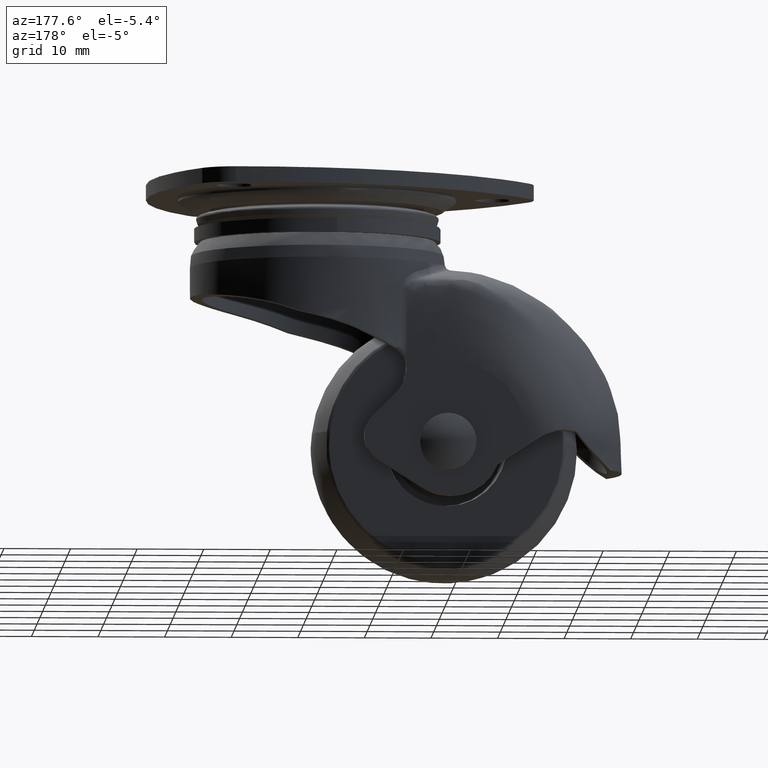
[diagram: clean part render]
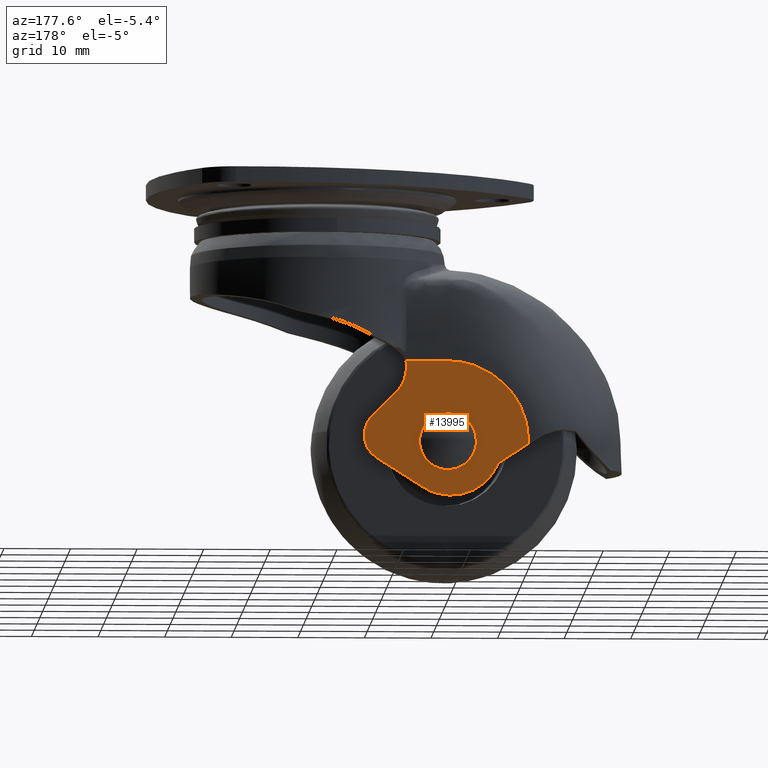
[diagram: same view with one face highlighted and labeled with its STEP entity id]
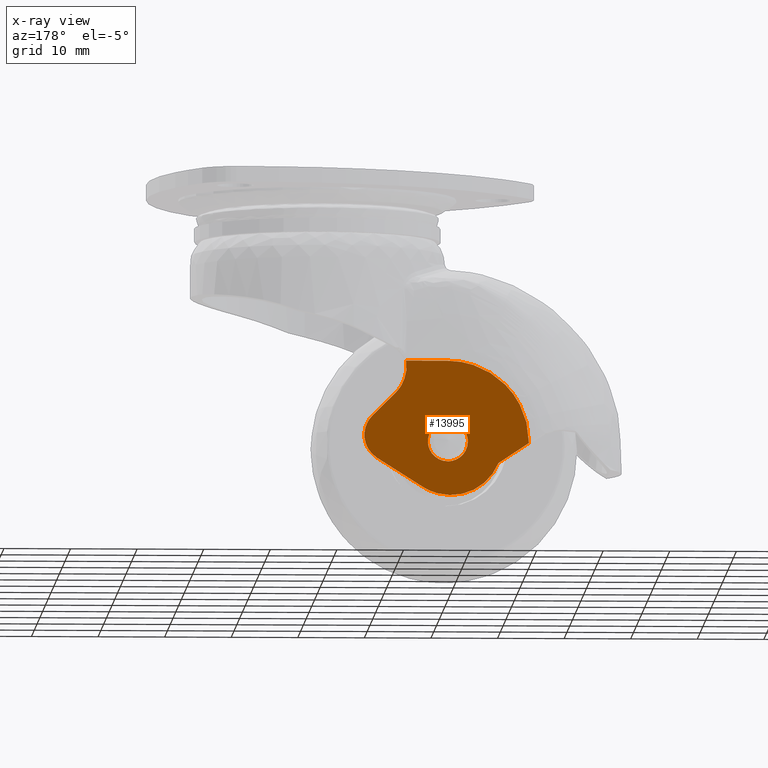
[diagram: x-ray of the same camera — body ghosted, the highlighted face saturated]
A machine part, auxiliary view. The second image highlights one B-rep face of the part: STEP entity #13995.
The next image is the same camera in x-ray: the body ghosted, the highlighted face saturated — about 0% of this face is hidden behind the body in this view.
In plain terms, the highlighted face is a freeform B-spline surface patch.
Its self-contained STEP definition (entity closure, byte-faithful):
#8306=CARTESIAN_POINT('',(-21.999885769190101,14.550000000000001,-40.026179606771542));
#8307=VERTEX_POINT('',#8306);
#8313=CARTESIAN_POINT('',(-19.0,14.550000000000001,-37.0));
#8314=VERTEX_POINT('',#8313);
#8315=CARTESIAN_POINT('',(-19.0,14.550000000000001,-37.0));
#8316=CARTESIAN_POINT('',(-22.000000000000007,14.550000000000002,-37.0));
#8317=CARTESIAN_POINT('',(-22.0,14.550000000000001,-40.0));
#8318=CARTESIAN_POINT('',(-22.000000000000007,14.550000000000008,-40.013090052738534));
#8319=CARTESIAN_POINT('',(-21.999885769190101,14.549999999999995,-40.026179606771535));
#8327=(BOUNDED_CURVE()B_SPLINE_CURVE(2,(#8315,#8316,#8317,#8318,#8319),.UNSPECIFIED.,.F.,.U.)B_SPLINE_CURVE_WITH_KNOTS((3,2,3),(0.500000000000000,0.750000000000000,0.751539894367447),.UNSPECIFIED.)CURVE()GEOMETRIC_REPRESENTATION_ITEM()RATIONAL_B_SPLINE_CURVE((1.0,0.707106781186548,1.0,0.998195901528342,0.996414028025284))REPRESENTATION_ITEM(''));
#8328=EDGE_CURVE('',#8314,#8307,#8327,.T.);
#8330=CARTESIAN_POINT('',(-16.023201358545140,14.550000000000001,-39.627615993586623));
#8331=VERTEX_POINT('',#8330);
#8332=CARTESIAN_POINT('',(-16.023201358545137,14.550000000000002,-39.627615993586609));
#8333=CARTESIAN_POINT('',(-16.351904199861121,14.550000000000001,-37.000000000000007));
#8334=CARTESIAN_POINT('',(-19.0,14.550000000000001,-37.0));
#8342=(BOUNDED_CURVE()B_SPLINE_CURVE(2,(#8332,#8333,#8334),.UNSPECIFIED.,.F.,.U.)B_SPLINE_CURVE_WITH_KNOTS((3,3),(0.271473928990405,0.500000000000000),.UNSPECIFIED.)CURVE()GEOMETRIC_REPRESENTATION_ITEM()RATIONAL_B_SPLINE_CURVE((0.954005430236482,0.732265053916832,1.0))REPRESENTATION_ITEM(''));
#8343=EDGE_CURVE('',#8331,#8314,#8342,.T.);
#8393=CARTESIAN_POINT('',(-19.0,14.550000000000001,-43.0));
#8394=VERTEX_POINT('',#8393);
#8395=CARTESIAN_POINT('',(-19.0,14.550000000000001,-43.0));
#8396=CARTESIAN_POINT('',(-15.999999999999998,14.550000000000002,-42.999999999999993));
#8397=CARTESIAN_POINT('',(-16.0,14.550000000000001,-40.0));
#8398=CARTESIAN_POINT('',(-16.000000000000007,14.550000000000002,-39.813085217223573));
#8399=CARTESIAN_POINT('',(-16.023201358545137,14.550000000000002,-39.627615993586609));
#8407=(BOUNDED_CURVE()B_SPLINE_CURVE(2,(#8395,#8396,#8397,#8398,#8399),.UNSPECIFIED.,.F.,.U.)B_SPLINE_CURVE_WITH_KNOTS((3,2,3),(0.0,0.250000000000000,0.271473928990405),.UNSPECIFIED.)CURVE()GEOMETRIC_REPRESENTATION_ITEM()RATIONAL_B_SPLINE_CURVE((1.0,0.707106781186548,1.0,0.974841727269715,0.954005430236482))REPRESENTATION_ITEM(''));
#8408=EDGE_CURVE('',#8394,#8331,#8407,.T.);
#8410=CARTESIAN_POINT('',(-21.999885769190104,14.550000000000001,-40.026179606771535));
#8411=CARTESIAN_POINT('',(-21.973933631236864,14.549999999999995,-42.999999999999993));
#8412=CARTESIAN_POINT('',(-19.0,14.550000000000001,-43.0));
#8420=(BOUNDED_CURVE()B_SPLINE_CURVE(2,(#8410,#8411,#8412),.UNSPECIFIED.,.F.,.U.)B_SPLINE_CURVE_WITH_KNOTS((3,3),(0.751539894367447,1.0),.UNSPECIFIED.)CURVE()GEOMETRIC_REPRESENTATION_ITEM()RATIONAL_B_SPLINE_CURVE((0.996414028025284,0.708910879658205,1.0))REPRESENTATION_ITEM(''));
#8421=EDGE_CURVE('',#8307,#8394,#8420,.T.);
#13450=CARTESIAN_POINT('',(-15.263557869565551,14.550000000000001,-46.886288979788603));
#13451=VERTEX_POINT('',#13450);
#13457=CARTESIAN_POINT('',(-8.358260999999800,14.550000000000001,-42.513686999999898));
#13458=VERTEX_POINT('',#13457);
#13459=CARTESIAN_POINT('',(-15.263557869565551,14.550000000000001,-46.886288979788603));
#13460=CARTESIAN_POINT('',(-8.358260999999800,14.550000000000001,-42.513686999999898));
#13461=QUASI_UNIFORM_CURVE('',1,(#13459,#13460),.UNSPECIFIED.,.F.,.U.);
#13462=EDGE_CURVE('',#13451,#13458,#13461,.T.);
#13487=CARTESIAN_POINT('',(-26.596337769349351,14.550000000000001,-43.233218426976201));
#13488=VERTEX_POINT('',#13487);
#13494=CARTESIAN_POINT('',(-26.596337769349351,14.550000000000001,-43.233218426976201));
#13495=CARTESIAN_POINT('',(-25.240896333229767,14.550000000000001,-46.600903582686662));
#13496=CARTESIAN_POINT('',(-21.785743756631419,14.550000000000001,-47.714656457954973));
#13497=CARTESIAN_POINT('',(-18.330591180033075,14.550000000000001,-48.828409333223284));
#13498=CARTESIAN_POINT('',(-15.263557869565540,14.550000000000001,-46.886288979788617));
#13506=(BOUNDED_CURVE()B_SPLINE_CURVE(2,(#13494,#13495,#13496,#13497,#13498),.UNSPECIFIED.,.F.,.U.)B_SPLINE_CURVE_WITH_KNOTS((3,2,3),(0.0,0.500000000000000,1.0),.UNSPECIFIED.)CURVE()GEOMETRIC_REPRESENTATION_ITEM()RATIONAL_B_SPLINE_CURVE((1.0,0.905533696519778,1.0,0.905533696519778,1.0))REPRESENTATION_ITEM(''));
#13507=EDGE_CURVE('',#13488,#13451,#13506,.T.);
#13871=CARTESIAN_POINT('',(-32.393377568723679,14.550000000000001,-26.828626052461960));
#13872=CARTESIAN_POINT('',(-32.393377568723679,14.550000000000001,-49.098137059517320));
#13873=CARTESIAN_POINT('',(-5.224336063072109,14.550000000000001,-26.828626052461960));
#13874=CARTESIAN_POINT('',(-5.224336063072109,14.550000000000001,-49.098137059517320));
#13875=B_SPLINE_SURFACE_WITH_KNOTS('',1,1,((#13871,#13873),(#13872,#13874)),.UNSPECIFIED.,.F.,.F.,.U.,(2,2),(2,2),(0.0,22.269511007055360),(0.0,27.169041505651570),.UNSPECIFIED.);
#13876=ORIENTED_EDGE('',*,*,#13507,.F.);
#13877=CARTESIAN_POINT('',(-31.157816983188400,14.550000000000001,-40.204930454616601));
#13878=VERTEX_POINT('',#13877);
#13879=CARTESIAN_POINT('',(-26.596337769349400,14.550000000000001,-43.233218426976293));
#13880=CARTESIAN_POINT('',(-28.840033417295018,14.549999999999997,-41.663275504103687));
#13881=CARTESIAN_POINT('',(-31.157816983188461,14.550000000000001,-40.204930454616687));
#13889=(BOUNDED_CURVE()B_SPLINE_CURVE(2,(#13879,#13880,#13881),.UNSPECIFIED.,.F.,.U.)CURVE()GEOMETRIC_REPRESENTATION_ITEM()QUASI_UNIFORM_CURVE()RATIONAL_B_SPLINE_CURVE((1.0,0.999700859279930,1.0))REPRESENTATION_ITEM(''));
#13890=EDGE_CURVE('',#13488,#13878,#13889,.T.);
#13891=ORIENTED_EDGE('',*,*,#13890,.T.);
#13892=CARTESIAN_POINT('',(-31.159543999999752,14.550000000000001,-39.999998204172947));
#13893=VERTEX_POINT('',#13892);
#13894=CARTESIAN_POINT('',(-31.159543999999752,14.550000000000001,-39.999998204172947));
#13895=CARTESIAN_POINT('',(-31.159544015134127,14.550000000000004,-40.102471606529818));
#13896=CARTESIAN_POINT('',(-31.157816983188400,14.550000000000001,-40.204930454616601));
#13904=(BOUNDED_CURVE()B_SPLINE_CURVE(2,(#13894,#13895,#13896),.UNSPECIFIED.,.F.,.U.)CURVE()GEOMETRIC_REPRESENTATION_ITEM()QUASI_UNIFORM_CURVE()RATIONAL_B_SPLINE_CURVE((1.0,0.999964491313558,1.0))REPRESENTATION_ITEM(''));
#13905=EDGE_CURVE('',#13893,#13878,#13904,.T.);
#13906=ORIENTED_EDGE('',*,*,#13905,.F.);
#13907=CARTESIAN_POINT('',(-27.599907046369701,14.550000000000001,-31.403715796445500));
#13908=VERTEX_POINT('',#13907);
#13909=CARTESIAN_POINT('',(-31.159543999999752,14.550000000000001,-39.999998204172947));
#13910=CARTESIAN_POINT('',(-31.158894182039649,14.550000000000001,-36.643496337140519));
#13911=CARTESIAN_POINT('',(-29.798744029562471,14.550000000000001,-33.604464345992461));
#13912=CARTESIAN_POINT('',(-27.599907046369701,14.550000000000001,-31.403715796445500));
#13913=B_SPLINE_CURVE_WITH_KNOTS('',3,(#13909,#13910,#13911,#13912),.UNSPECIFIED.,.F.,.U.,(4,4),(1.000000089137952,1.499715138979181),.UNSPECIFIED.);
#13914=EDGE_CURVE('',#13893,#13908,#13913,.T.);
#13915=ORIENTED_EDGE('',*,*,#13914,.T.);
#13916=CARTESIAN_POINT('',(-19.0,14.550000000000001,-27.839956000080349));
#13917=VERTEX_POINT('',#13916);
#13918=CARTESIAN_POINT('',(-27.599907046369701,14.550000000000001,-31.403715796445500));
#13919=CARTESIAN_POINT('',(-25.398902913027420,14.550000000000001,-29.202556957239018));
#13920=CARTESIAN_POINT('',(-22.358369033956450,14.550000000000001,-27.840726605074991));
#13921=CARTESIAN_POINT('',(-19.0,14.550000000000001,-27.839956000080349));
#13922=B_SPLINE_CURVE_WITH_KNOTS('',3,(#13918,#13919,#13920,#13921),.UNSPECIFIED.,.F.,.U.,(4,4),(1.500000000000040,1.999999980078570),.UNSPECIFIED.);
#13923=EDGE_CURVE('',#13908,#13917,#13922,.T.);
#13924=ORIENTED_EDGE('',*,*,#13923,.T.);
#13925=CARTESIAN_POINT('',(-12.696323645292560,14.550000000000001,-27.840455999999548));
#13926=VERTEX_POINT('',#13925);
#13927=CARTESIAN_POINT('',(-19.0,14.550000000000001,-27.839956000080349));
#13928=CARTESIAN_POINT('',(-16.898774548430730,14.550000000000001,-27.840122666720148));
#13929=CARTESIAN_POINT('',(-14.797549096861619,14.550000000000001,-27.840289333359870));
#13930=CARTESIAN_POINT('',(-12.696323645292560,14.550000000000001,-27.840455999999548));
#13931=B_SPLINE_CURVE_WITH_KNOTS('',3,(#13927,#13928,#13929,#13930),.UNSPECIFIED.,.F.,.U.,(4,4),(2.0,2.331772439721395),.UNSPECIFIED.);
#13932=EDGE_CURVE('',#13917,#13926,#13931,.T.);
#13933=ORIENTED_EDGE('',*,*,#13932,.T.);
#13934=CARTESIAN_POINT('',(-12.730730015653720,14.550000000000001,-28.024757255452300));
#13935=VERTEX_POINT('',#13934);
#13936=CARTESIAN_POINT('',(-12.696323645292569,14.550000000000001,-27.840455999999548));
#13937=CARTESIAN_POINT('',(-12.718501727635553,14.550000000000006,-27.931677886604756));
#13938=CARTESIAN_POINT('',(-12.730730015653720,14.550000000000001,-28.024757255452300));
#13946=(BOUNDED_CURVE()B_SPLINE_CURVE(2,(#13936,#13937,#13938),.UNSPECIFIED.,.F.,.U.)CURVE()GEOMETRIC_REPRESENTATION_ITEM()QUASI_UNIFORM_CURVE()RATIONAL_B_SPLINE_CURVE((1.0,0.998546140216642,1.0))REPRESENTATION_ITEM(''));
#13947=EDGE_CURVE('',#13926,#13935,#13946,.T.);
#13948=ORIENTED_EDGE('',*,*,#13947,.T.);
#13949=CARTESIAN_POINT('',(-11.145439816362840,14.550000000000001,-32.686664715865803));
#13950=VERTEX_POINT('',#13949);
#13951=CARTESIAN_POINT('',(-12.730730015653730,14.550000000000001,-28.024757255452300));
#13952=CARTESIAN_POINT('',(-13.088370783778275,14.550000000000004,-30.746867808921436));
#13953=CARTESIAN_POINT('',(-11.145439816362840,14.550000000000001,-32.686664715865803));
#13961=(BOUNDED_CURVE()B_SPLINE_CURVE(2,(#13951,#13952,#13953),.UNSPECIFIED.,.F.,.U.)CURVE()GEOMETRIC_REPRESENTATION_ITEM()QUASI_UNIFORM_CURVE()RATIONAL_B_SPLINE_CURVE((1.0,0.896752652619497,1.0))REPRESENTATION_ITEM(''));
#13962=EDGE_CURVE('',#13935,#13950,#13961,.T.);
#13963=ORIENTED_EDGE('',*,*,#13962,.T.);
#13964=CARTESIAN_POINT('',(-7.657226152445430,14.550000000000001,-36.169252321304100));
#13965=VERTEX_POINT('',#13964);
#13966=CARTESIAN_POINT('',(-11.145439816362840,14.550000000000001,-32.686664715865803));
#13967=CARTESIAN_POINT('',(-7.657226152445430,14.550000000000001,-36.169252321304100));
#13968=QUASI_UNIFORM_CURVE('',1,(#13966,#13967),.UNSPECIFIED.,.F.,.U.);
#13969=EDGE_CURVE('',#13950,#13965,#13968,.T.);
#13970=ORIENTED_EDGE('',*,*,#13969,.T.);
#13971=CARTESIAN_POINT('',(-8.358260999999800,14.550000000000001,-42.513686999999898));
#13972=CARTESIAN_POINT('',(-6.698471985174462,14.550000000000002,-41.462667243460544));
#13973=CARTESIAN_POINT('',(-6.482707645333065,14.550000000000001,-39.509979902378227));
#13974=CARTESIAN_POINT('',(-6.266943305491668,14.550000000000002,-37.557292561295917));
#13975=CARTESIAN_POINT('',(-7.657226152445491,14.550000000000001,-36.169252321304157));
#13983=(BOUNDED_CURVE()B_SPLINE_CURVE(2,(#13971,#13972,#13973,#13974,#13975),.UNSPECIFIED.,.F.,.U.)B_SPLINE_CURVE_WITH_KNOTS((3,2,3),(0.0,0.500000000000000,1.0),.UNSPECIFIED.)CURVE()GEOMETRIC_REPRESENTATION_ITEM()RATIONAL_B_SPLINE_CURVE((1.0,0.901259993072698,1.0,0.901259993072698,1.0))REPRESENTATION_ITEM(''));
#13984=EDGE_CURVE('',#13458,#13965,#13983,.T.);
#13985=ORIENTED_EDGE('',*,*,#13984,.F.);
#13986=ORIENTED_EDGE('',*,*,#13462,.F.);
#13987=EDGE_LOOP('',(#13876,#13891,#13906,#13915,#13924,#13933,#13948,#13963,#13970,#13985,#13986));
#13988=FACE_OUTER_BOUND('',#13987,.T.);
#13989=ORIENTED_EDGE('',*,*,#8328,.T.);
#13990=ORIENTED_EDGE('',*,*,#8421,.T.);
#13991=ORIENTED_EDGE('',*,*,#8408,.T.);
#13992=ORIENTED_EDGE('',*,*,#8343,.T.);
#13993=EDGE_LOOP('',(#13989,#13990,#13991,#13992));
#13994=FACE_BOUND('',#13993,.T.);
#13995=ADVANCED_FACE('',(#13988,#13994),#13875,.F.);